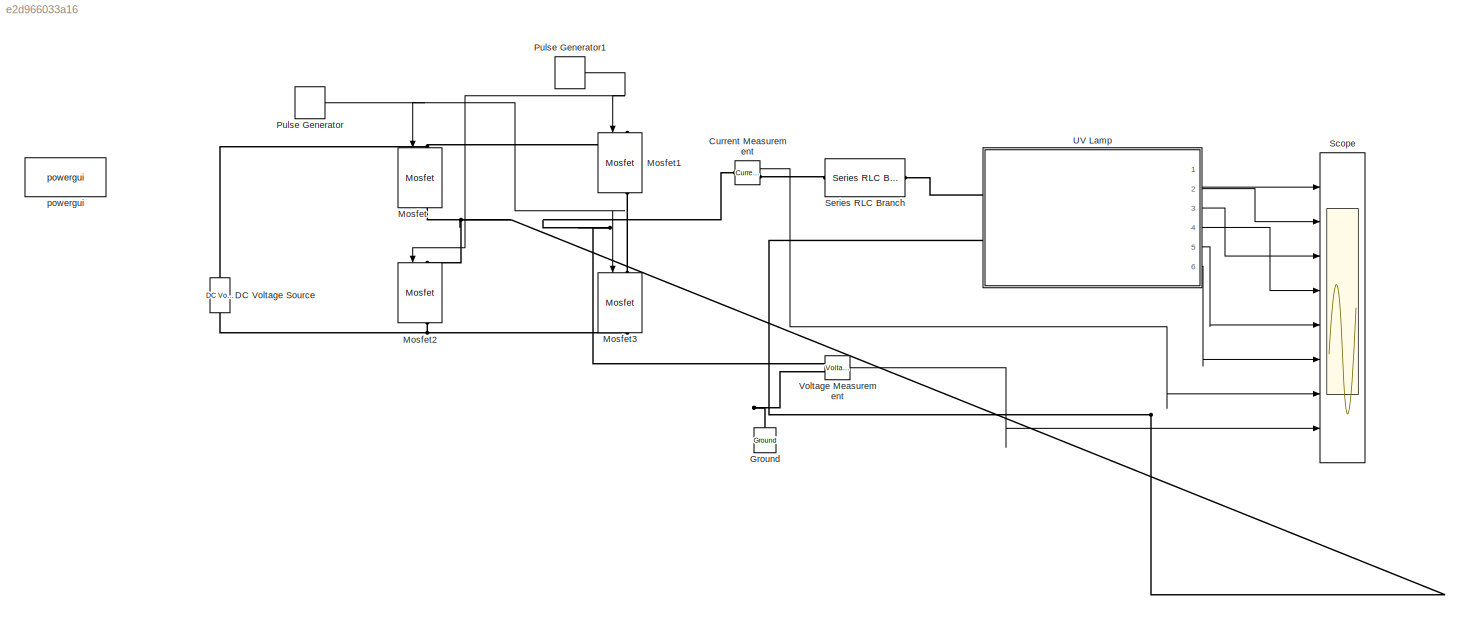
MODEL slx_e2d966033a16
KIND model
CONFIG AbsTol = auto
CONFIG EnableMultiTasking = off
CONFIG FixedStep = auto
CONFIG MaxStep = auto
CONFIG MinStep = auto
CONFIG RelTol = 1e-3
CONFIG SampleTimeConstraint = Unconstrained
CONFIG Solver = VariableStepAuto
CONFIG SolverName = VariableStepAuto
CONFIG StartTime = 0.0
CONFIG StopTime = 10.0
BLOCK [Reference] Current Measurement  REF=powerlib/Measurements/Current Measurement
  Ports = [0, 1, 0, 0, 0, 1, 1]
  SourceBlock = powerlib/Measurements/Current Measurement
  SourceProductBaseCode = PS
  SourceType = Current Measurement
  UserDataPersistent = on
BLOCK [Reference] DC Voltage Source  REF=powerlib/Electrical
Sources/DC Voltage Source
  NameLocation = right
  Ports = [0, 0, 0, 0, 0, 1, 1]
  SourceBlock = powerlib/Electrical\nSources/DC Voltage Source
  SourceProductBaseCode = PS
  SourceType = DC Voltage Source
BLOCK [Reference] Ground  REF=powerlib/Elements/Ground
  NameLocation = right
  Ports = [0, 0, 0, 0, 0, 1]
  SourceBlock = powerlib/Elements/Ground
  SourceProductBaseCode = PS
  SourceType = Ground
BLOCK [Reference] Mosfet  REF=powerlib/Power
Electronics/Mosfet
  NameLocation = left
  Ports = [1, 1, 0, 0, 0, 1, 1]
  SourceBlock = powerlib/Power\nElectronics/Mosfet
  SourceProductBaseCode = PS
  SourceType = Mosfet
BLOCK [Reference] Mosfet1  REF=powerlib/Power
Electronics/Mosfet
  NameLocation = left
  Ports = [1, 1, 0, 0, 0, 1, 1]
  SourceBlock = powerlib/Power\nElectronics/Mosfet
  SourceProductBaseCode = PS
  SourceType = Mosfet
BLOCK [Reference] Mosfet2  REF=powerlib/Power
Electronics/Mosfet
  NameLocation = left
  Ports = [1, 1, 0, 0, 0, 1, 1]
  SourceBlock = powerlib/Power\nElectronics/Mosfet
  SourceProductBaseCode = PS
  SourceType = Mosfet
BLOCK [Reference] Mosfet3  REF=powerlib/Power
Electronics/Mosfet
  NameLocation = left
  Ports = [1, 1, 0, 0, 0, 1, 1]
  SourceBlock = powerlib/Power\nElectronics/Mosfet
  SourceProductBaseCode = PS
  SourceType = Mosfet
BLOCK [DiscretePulseGenerator] Pulse Generator
  Period = 2e-3
  Ports = [0, 1]
  PulseType = Time based
  PulseWidth = 50
BLOCK [DiscretePulseGenerator] Pulse Generator1
  Period = 2e-3
  PhaseDelay = 1e-3
  Ports = [0, 1]
  PulseType = Time based
  PulseWidth = 50
BLOCK [Scope] Scope
  Floating = off
  NumInputPorts = 8
  Ports = [8]
  ScopeSpecificationString = Simulink.scopes.TimeScopeBlockCfg('CurrentConfiguration', extmgr.ConfigurationSet(extmgr.Configuration('Core','General UI',true),extmgr.Configuration('Core','Source UI',true),extmgr.Configuration('Sources','WiredSimulink',true),extmgr.Configuration('Visuals','Time Domain',true,'SerializedDisplays',{struct('MinYLimReal','-250.16962','MaxYLimReal','250.18565','YLabelReal','','MinYLimMag',' 0.00000',...<+1353ch>
BLOCK [Reference] Series RLC Branch  REF=powerlib/Elements/Series RLC Branch
  Ports = [0, 0, 0, 0, 0, 1, 1]
  SourceBlock = powerlib/Elements/Series RLC Branch
  SourceProductBaseCode = PS
  SourceType = Series RLC Branch
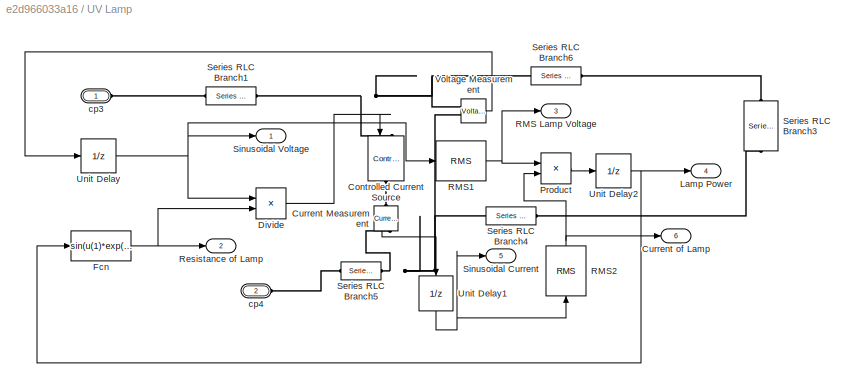
BLOCK [SubSystem] UV Lamp
  Ports = [0, 6, 0, 0, 0, 2]
  RequestExecContextInheritance = off
BLOCK [Reference] UV Lamp/Controlled Current Source  REF=powerlib/Electrical
Sources/Controlled Current Source
  NameLocation = left
  Ports = [1, 0, 0, 0, 0, 1, 1]
  SourceBlock = powerlib/Electrical\nSources/Controlled Current Source
  SourceProductBaseCode = PS
  SourceType = Controlled Current Source
BLOCK [Reference] UV Lamp/Current Measurement  REF=powerlib/Measurements/Current Measurement
  NameLocation = left
  Ports = [0, 1, 0, 0, 0, 1, 1]
  SourceBlock = powerlib/Measurements/Current Measurement
  SourceProductBaseCode = PS
  SourceType = Current Measurement
  UserDataPersistent = on
BLOCK [Outport] UV Lamp/Current of Lamp
  Port = 6
BLOCK [Product] UV Lamp/Divide
  Inputs = */
  Ports = [2, 1]
BLOCK [Fcn] UV Lamp/Fcn
  Expr = sin(u(1)*exp(2.3*(-u(2))))
BLOCK [Outport] UV Lamp/Lamp Power
  Port = 4
BLOCK [Product] UV Lamp/Product
  Ports = [2, 1]
BLOCK [Outport] UV Lamp/RMS Lamp Voltage
  Port = 3
BLOCK [Reference] UV Lamp/RMS1  REF=powerlib_meascontrol/Measurements/RMS
  Ports = [1, 1]
  SourceBlock = powerlib_meascontrol/Measurements/RMS
  SourceProductBaseCode = PS
  SourceType = RMS
BLOCK [Reference] UV Lamp/RMS2  REF=powerlib_meascontrol/Measurements/RMS
  NameLocation = right
  Ports = [1, 1]
  SourceBlock = powerlib_meascontrol/Measurements/RMS
  SourceProductBaseCode = PS
  SourceType = RMS
BLOCK [Outport] UV Lamp/Resistance of Lamp
  Port = 2
BLOCK [Reference] UV Lamp/Series RLC Branch1  REF=powerlib/Elements/Series RLC Branch
  Ports = [0, 0, 0, 0, 0, 1, 1]
  SourceBlock = powerlib/Elements/Series RLC Branch
  SourceProductBaseCode = PS
  SourceType = Series RLC Branch
BLOCK [Reference] UV Lamp/Series RLC Branch3  REF=powerlib/Elements/Series RLC Branch
  NameLocation = left
  Ports = [0, 0, 0, 0, 0, 1, 1]
  SourceBlock = powerlib/Elements/Series RLC Branch
  SourceProductBaseCode = PS
  SourceType = Series RLC Branch
BLOCK [Reference] UV Lamp/Series RLC Branch4  REF=powerlib/Elements/Series RLC Branch
  Ports = [0, 0, 0, 0, 0, 1, 1]
  SourceBlock = powerlib/Elements/Series RLC Branch
  SourceProductBaseCode = PS
  SourceType = Series RLC Branch
BLOCK [Reference] UV Lamp/Series RLC Branch5  REF=powerlib/Elements/Series RLC Branch
  Ports = [0, 0, 0, 0, 0, 1, 1]
  SourceBlock = powerlib/Elements/Series RLC Branch
  SourceProductBaseCode = PS
  SourceType = Series RLC Branch
BLOCK [Reference] UV Lamp/Series RLC Branch6  REF=powerlib/Elements/Series RLC Branch
  Ports = [0, 0, 0, 0, 0, 1, 1]
  SourceBlock = powerlib/Elements/Series RLC Branch
  SourceProductBaseCode = PS
  SourceType = Series RLC Branch
BLOCK [Outport] UV Lamp/Sinusoidal Current
  Port = 5
BLOCK [Outport] UV Lamp/Sinusoidal Voltage
BLOCK [UnitDelay] UV Lamp/Unit Delay
  HasFrameUpgradeWarning = on
  SampleTime = -1
BLOCK [UnitDelay] UV Lamp/Unit Delay1
  HasFrameUpgradeWarning = on
  NameLocation = left
  SampleTime = -1
BLOCK [UnitDelay] UV Lamp/Unit Delay2
  HasFrameUpgradeWarning = on
  SampleTime = -1
BLOCK [Reference] UV Lamp/Voltage Measurement  REF=powerlib/Measurements/Voltage Measurement
  Ports = [0, 1, 0, 0, 0, 2]
  SourceBlock = powerlib/Measurements/Voltage Measurement
  SourceProductBaseCode = PS
  SourceType = Voltage Measurement
  UserDataPersistent = on
BLOCK [PMIOPort] UV Lamp/cp3
  Side = Left
BLOCK [PMIOPort] UV Lamp/cp4
  Port = 2
  Side = Left
BLOCK [Reference] Voltage Measurement  REF=powerlib/Measurements/Voltage Measurement
  Ports = [0, 1, 0, 0, 0, 2]
  SourceBlock = powerlib/Measurements/Voltage Measurement
  SourceProductBaseCode = PS
  SourceType = Voltage Measurement
  UserDataPersistent = on
BLOCK [Reference] powergui  REF=powerlib/powergui
  Ports = []
  Priority = 1
  SourceBlock = powerlib/powergui
  SourceProductBaseCode = PS
  SourceType = PSB option menu block
LINE Current Measurement:1 -> Scope:7
NET Pulse Generator1:1 -> Mosfet1:1, Mosfet2:1
NET Pulse Generator:1 -> Mosfet3:1, Mosfet:1
LINE UV Lamp/Current Measurement:1 -> UV Lamp/Unit Delay1:1
LINE UV Lamp/Divide:1 -> UV Lamp/Controlled Current Source:1
NET UV Lamp/Fcn:1 -> UV Lamp/Divide:2, UV Lamp/Resistance of Lamp:1
LINE UV Lamp/Product:1 -> UV Lamp/Unit Delay2:1
NET UV Lamp/RMS1:1 -> UV Lamp/Product:1, UV Lamp/RMS Lamp Voltage:1
NET UV Lamp/RMS2:1 -> UV Lamp/Current of Lamp:1, UV Lamp/Product:2
NET UV Lamp/Unit Delay1:1 -> UV Lamp/RMS2:1, UV Lamp/Sinusoidal Current:1
NET UV Lamp/Unit Delay2:1 -> UV Lamp/Fcn:1, UV Lamp/Lamp Power:1
NET UV Lamp/Unit Delay:1 -> UV Lamp/Divide:1, UV Lamp/RMS1:1, UV Lamp/Sinusoidal Voltage:1
LINE UV Lamp/Voltage Measurement:1 -> UV Lamp/Unit Delay:1
LINE UV Lamp:1 -> Scope:1
LINE UV Lamp:2 -> Scope:2
LINE UV Lamp:3 -> Scope:3
LINE UV Lamp:4 -> Scope:4
LINE UV Lamp:5 -> Scope:5
LINE UV Lamp:6 -> Scope:6
LINE Voltage Measurement:1 -> Scope:8
PNET net1: Current Measurement:LConn1 -- Ground:LConn1 -- Mosfet1:RConn1 -- Mosfet2:LConn1 -- Mosfet3:LConn1 -- Mosfet:RConn1 -- UV Lamp:LConn2 -- Voltage Measurement:LConn1 -- Voltage Measurement:LConn2
PLINE Current Measurement:RConn1 -- Series RLC Branch:LConn1
PNET net2: DC Voltage Source:LConn1 -- Mosfet2:RConn1 -- Mosfet3:RConn1
PNET net3: DC Voltage Source:RConn1 -- Mosfet1:LConn1 -- Mosfet:LConn1
PLINE Series RLC Branch:RConn1 -- UV Lamp:LConn1
PNET net4: UV Lamp/Controlled Current Source:LConn1 -- UV Lamp/Series RLC Branch1:RConn1 -- UV Lamp/Series RLC Branch6:LConn1 -- UV Lamp/Voltage Measurement:LConn1
PLINE UV Lamp/Controlled Current Source:RConn1 -- UV Lamp/Current Measurement:LConn1
PNET net5: UV Lamp/Current Measurement:RConn1 -- UV Lamp/Series RLC Branch4:LConn1 -- UV Lamp/Series RLC Branch5:RConn1 -- UV Lamp/Voltage Measurement:LConn2
PLINE UV Lamp/Series RLC Branch1:LConn1 -- UV Lamp/cp3:RConn1
PLINE UV Lamp/Series RLC Branch3:LConn1 -- UV Lamp/Series RLC Branch6:RConn1
PLINE UV Lamp/Series RLC Branch3:RConn1 -- UV Lamp/Series RLC Branch4:RConn1
PLINE UV Lamp/Series RLC Branch5:LConn1 -- UV Lamp/cp4:RConn1
note: NET lines group one-source signal fan-out (src -> all destinations, sorted); 1:1 wires keep LINE; PNET lines group multi-terminal physical nets as a canonical sorted terminal list (undirected conserving connections); 2-terminal nets keep the pairwise PLINE form
